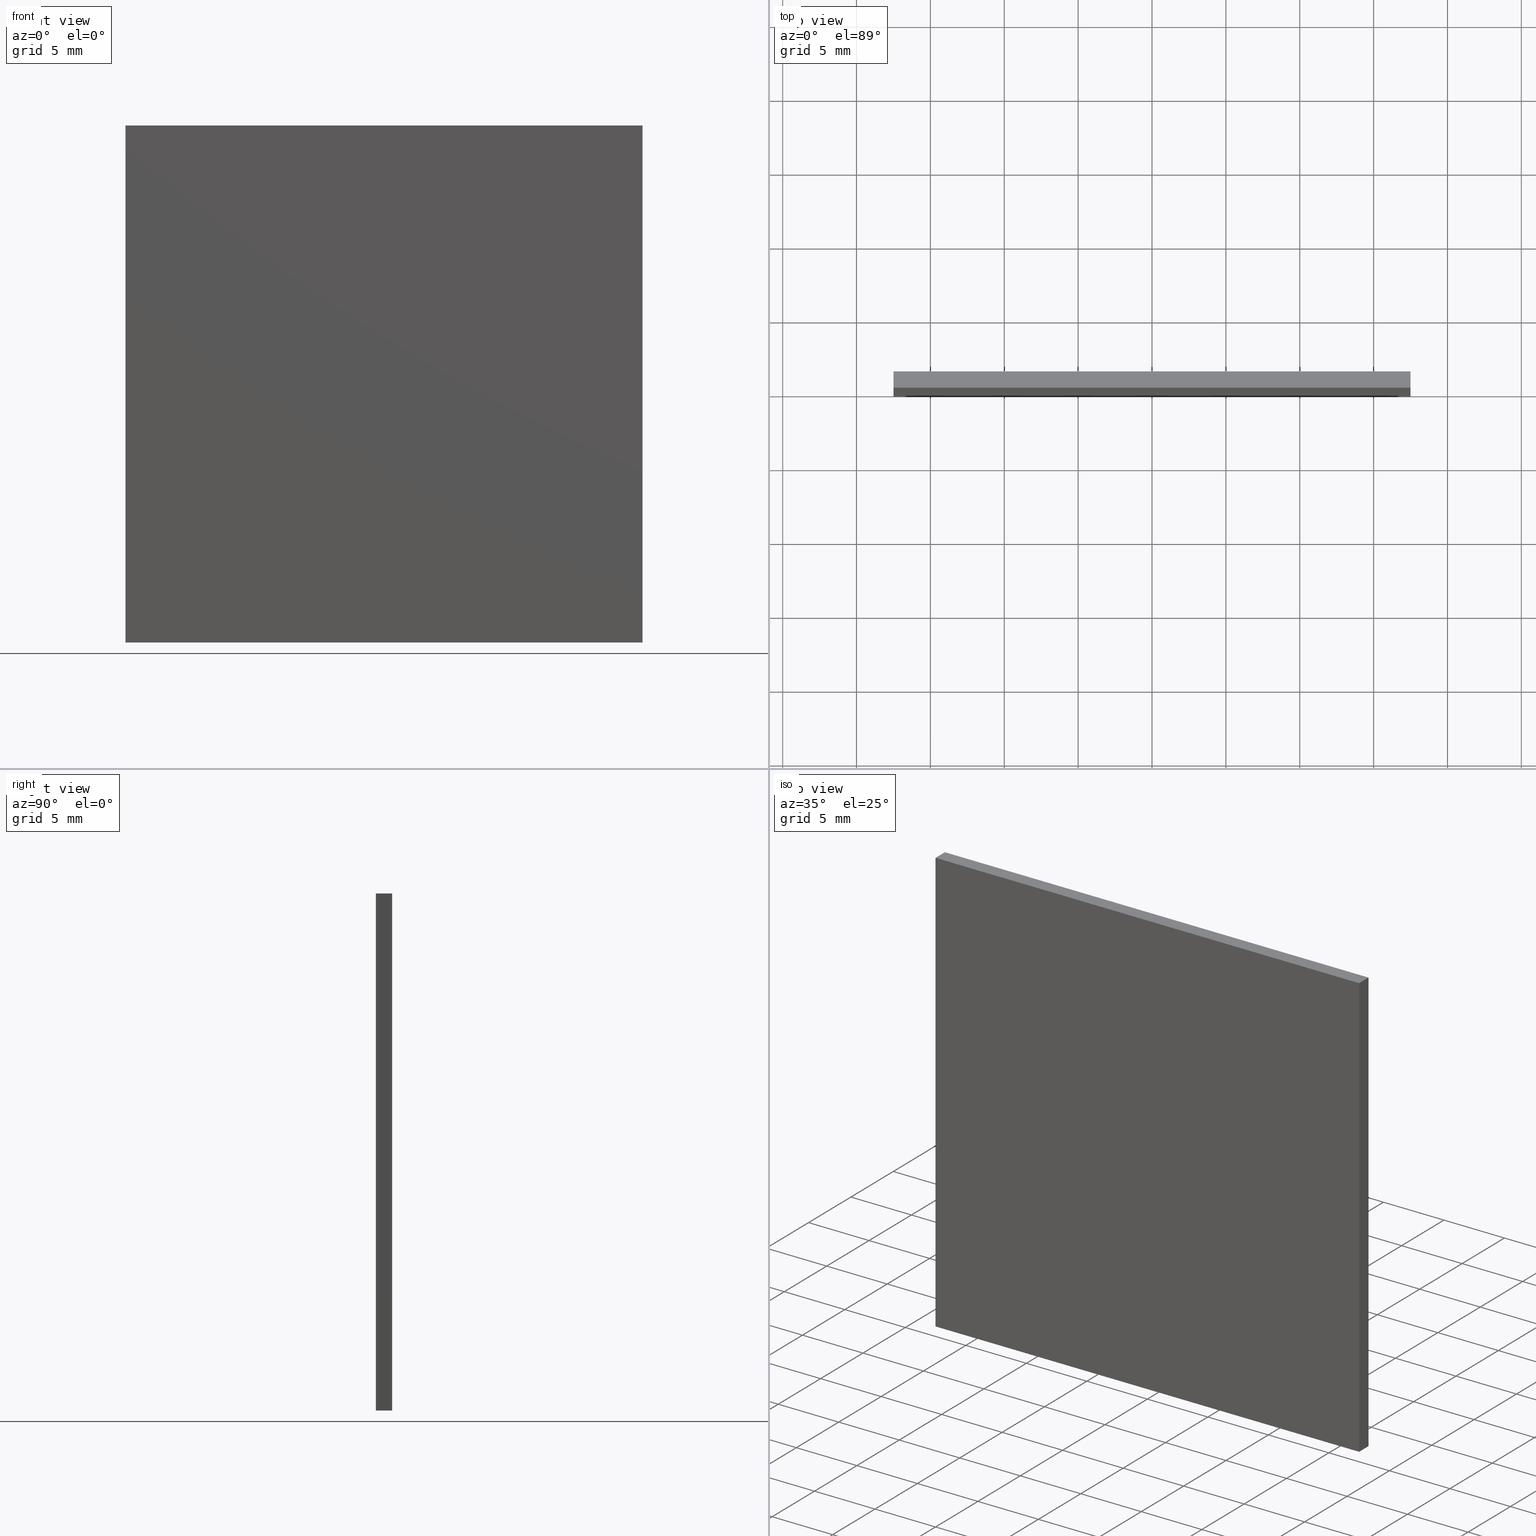
[diagram: canonical four-view strip — front | top / right | iso, engineering-drawing reading convention]
A machine part, canonical four-view strip (front | top / right | iso — engineering-drawing reading convention). The complete STEP part file that produces these views, byte-faithful:
ISO-10303-21;
HEADER;
FILE_DESCRIPTION (( 'STEP AP214' ),
    '1' );
FILE_NAME ('258504.STEP',
    '2019-08-06T09:05:42',
    ( 'user' ),
    ( '΢���й�' ),
    'SwSTEP 2.0',
    'SolidWorks 2016',
    '' );
FILE_SCHEMA (( 'AUTOMOTIVE_DESIGN' ));
ENDSEC;

DATA;
#1 = EDGE_CURVE ( 'NONE', #122, #13, #82, .T. ) ;
#2 = FACE_OUTER_BOUND ( 'NONE', #19, .T. ) ;
#3 = ORIENTED_EDGE ( 'NONE', *, *, #123, .T. ) ;
#4 = CARTESIAN_POINT ( 'NONE',  ( 17.50000000000000000, 1.100000000000000100, 17.50000000000000000 ) ) ;
#5 = UNCERTAINTY_MEASURE_WITH_UNIT (LENGTH_MEASURE( 1.000000000000000100E-005 ), #11, 'distance_accuracy_value', 'NONE');
#6 = VERTEX_POINT ( 'NONE', #17 ) ;
#7 = PLANE ( 'NONE',  #31 ) ;
#8 = EDGE_CURVE ( 'NONE', #6, #66, #118, .T. ) ;
#9 = EDGE_CURVE ( 'NONE', #6, #46, #202, .T. ) ;
#10 = VECTOR ( 'NONE', #115, 1000.000000000000000 ) ;
#11 =( LENGTH_UNIT ( ) NAMED_UNIT ( * ) SI_UNIT ( .MILLI., .METRE. ) );
#12 = VECTOR ( 'NONE', #74, 1000.000000000000000 ) ;
#13 = VERTEX_POINT ( 'NONE', #67 ) ;
#14 = SURFACE_STYLE_USAGE ( .BOTH. , #101 ) ;
#15 = LINE ( 'NONE', #89, #136 ) ;
#16 =( GEOMETRIC_REPRESENTATION_CONTEXT ( 3 ) GLOBAL_UNCERTAINTY_ASSIGNED_CONTEXT ( ( #29 ) ) GLOBAL_UNIT_ASSIGNED_CONTEXT ( ( #117, #38, #59 ) ) REPRESENTATION_CONTEXT ( 'NONE', 'WORKASPACE' ) );
#17 = CARTESIAN_POINT ( 'NONE',  ( 17.50000000000000000, 1.100000000000000100, 17.50000000000000000 ) ) ;
#18 = CARTESIAN_POINT ( 'NONE',  ( 0.0000000000000000000, 0.0000000000000000000, 0.0000000000000000000 ) ) ;
#19 = EDGE_LOOP ( 'NONE', ( #184, #124, #161, #114 ) ) ;
#20 = DIRECTION ( 'NONE',  ( -0.0000000000000000000, -1.000000000000000000, -0.0000000000000000000 ) ) ;
#21 =( NAMED_UNIT ( * ) SI_UNIT ( $, .STERADIAN. ) SOLID_ANGLE_UNIT ( ) );
#22 =( GEOMETRIC_REPRESENTATION_CONTEXT ( 3 ) GLOBAL_UNCERTAINTY_ASSIGNED_CONTEXT ( ( #5 ) ) GLOBAL_UNIT_ASSIGNED_CONTEXT ( ( #11, #195, #108 ) ) REPRESENTATION_CONTEXT ( 'NONE', 'WORKASPACE' ) );
#23 = CARTESIAN_POINT ( 'NONE',  ( -17.50000000000000000, 0.0000000000000000000, -17.50000000000000000 ) ) ;
#24 = CARTESIAN_POINT ( 'NONE',  ( 17.50000000000000000, 0.0000000000000000000, -17.50000000000000000 ) ) ;
#25 = PRODUCT_RELATED_PRODUCT_CATEGORY ( 'part', '', ( #106 ) ) ;
#26 = SURFACE_STYLE_USAGE ( .BOTH. , #190 ) ;
#27 = ORIENTED_EDGE ( 'NONE', *, *, #201, .F. ) ;
#28 = ORIENTED_EDGE ( 'NONE', *, *, #63, .F. ) ;
#29 = UNCERTAINTY_MEASURE_WITH_UNIT (LENGTH_MEASURE( 1.000000000000000100E-005 ), #117, 'distance_accuracy_value', 'NONE');
#30 = VECTOR ( 'NONE', #71, 1000.000000000000000 ) ;
#31 = AXIS2_PLACEMENT_3D ( 'NONE', #42, #103, #61 ) ;
#32 = CARTESIAN_POINT ( 'NONE',  ( -17.50000000000000000, 1.100000000000000100, -17.50000000000000000 ) ) ;
#33 = FACE_OUTER_BOUND ( 'NONE', #80, .T. ) ;
#34 = ADVANCED_FACE ( 'NONE', ( #105 ), #36, .F. ) ;
#35 = COLOUR_RGB ( '',1.000000000000000000, 1.000000000000000000, 1.000000000000000000 ) ;
#36 = PLANE ( 'NONE',  #132 ) ;
#37 = FILL_AREA_STYLE_COLOUR ( '', #139 ) ;
#38 =( NAMED_UNIT ( * ) PLANE_ANGLE_UNIT ( ) SI_UNIT ( $, .RADIAN. ) );
#39 =( GEOMETRIC_REPRESENTATION_CONTEXT ( 3 ) GLOBAL_UNCERTAINTY_ASSIGNED_CONTEXT ( ( #73 ) ) GLOBAL_UNIT_ASSIGNED_CONTEXT ( ( #40, #56, #21 ) ) REPRESENTATION_CONTEXT ( 'NONE', 'WORKASPACE' ) );
#40 =( LENGTH_UNIT ( ) NAMED_UNIT ( * ) SI_UNIT ( .MILLI., .METRE. ) );
#41 = VECTOR ( 'NONE', #20, 1000.000000000000000 ) ;
#42 = CARTESIAN_POINT ( 'NONE',  ( -17.50000000000000000, 1.100000000000000100, 17.50000000000000000 ) ) ;
#43 = SURFACE_STYLE_FILL_AREA ( #171 ) ;
#44 = ORIENTED_EDGE ( 'NONE', *, *, #201, .T. ) ;
#45 = PRESENTATION_LAYER_ASSIGNMENT (  '', '', ( #164 ) ) ;
#46 = VERTEX_POINT ( 'NONE', #175 ) ;
#47 = FACE_OUTER_BOUND ( 'NONE', #104, .T. ) ;
#48 = ORIENTED_EDGE ( 'NONE', *, *, #1, .T. ) ;
#49 = SHAPE_DEFINITION_REPRESENTATION ( #65, #162 ) ;
#50 = DIRECTION ( 'NONE',  ( -0.0000000000000000000, -1.000000000000000000, -0.0000000000000000000 ) ) ;
#51 = CARTESIAN_POINT ( 'NONE',  ( 17.50000000000000000, 1.100000000000000100, -17.50000000000000000 ) ) ;
#52 = ORIENTED_EDGE ( 'NONE', *, *, #85, .T. ) ;
#53 = PLANE ( 'NONE',  #166 ) ;
#54 = DIRECTION ( 'NONE',  ( 0.0000000000000000000, 1.000000000000000000, 0.0000000000000000000 ) ) ;
#55 = FILL_AREA_STYLE ('',( #37 ) ) ;
#56 =( NAMED_UNIT ( * ) PLANE_ANGLE_UNIT ( ) SI_UNIT ( $, .RADIAN. ) );
#57 = AXIS2_PLACEMENT_3D ( 'NONE', #87, #170, #199 ) ;
#58 = EDGE_LOOP ( 'NONE', ( #154, #62, #163, #107 ) ) ;
#59 =( NAMED_UNIT ( * ) SI_UNIT ( $, .STERADIAN. ) SOLID_ANGLE_UNIT ( ) );
#60 = MECHANICAL_DESIGN_GEOMETRIC_PRESENTATION_REPRESENTATION (  '', ( #164 ), #22 ) ;
#61 = DIRECTION ( 'NONE',  ( -1.000000000000000000, 0.0000000000000000000, -0.0000000000000000000 ) ) ;
#62 = ORIENTED_EDGE ( 'NONE', *, *, #109, .T. ) ;
#63 = EDGE_CURVE ( 'NONE', #119, #180, #69, .T. ) ;
#64 = VECTOR ( 'NONE', #189, 1000.000000000000000 ) ;
#65 = PRODUCT_DEFINITION_SHAPE ( 'NONE', 'NONE',  #120 ) ;
#66 = VERTEX_POINT ( 'NONE', #144 ) ;
#67 = CARTESIAN_POINT ( 'NONE',  ( -17.50000000000000000, 0.0000000000000000000, -17.50000000000000000 ) ) ;
#68 = EDGE_LOOP ( 'NONE', ( #145, #169, #146, #183 ) ) ;
#69 = LINE ( 'NONE', #151, #41 ) ;
#70 = CARTESIAN_POINT ( 'NONE',  ( -17.50000000000000000, 1.100000000000000100, -17.50000000000000000 ) ) ;
#71 = DIRECTION ( 'NONE',  ( -0.0000000000000000000, -0.0000000000000000000, -1.000000000000000000 ) ) ;
#72 = ADVANCED_FACE ( 'NONE', ( #121 ), #140, .F. ) ;
#73 = UNCERTAINTY_MEASURE_WITH_UNIT (LENGTH_MEASURE( 1.000000000000000100E-005 ), #40, 'distance_accuracy_value', 'NONE');
#74 = DIRECTION ( 'NONE',  ( -0.0000000000000000000, -1.000000000000000000, -0.0000000000000000000 ) ) ;
#75 = VECTOR ( 'NONE', #160, 1000.000000000000000 ) ;
#76 = DIRECTION ( 'NONE',  ( 0.0000000000000000000, 0.0000000000000000000, 1.000000000000000000 ) ) ;
#77 = VECTOR ( 'NONE', #196, 1000.000000000000000 ) ;
#78 = VERTEX_POINT ( 'NONE', #24 ) ;
#79 = PRODUCT_DEFINITION_FORMATION_WITH_SPECIFIED_SOURCE ( '�κ�', '', #106, .NOT_KNOWN. ) ;
#80 = EDGE_LOOP ( 'NONE', ( #149, #96, #27, #134 ) ) ;
#81 = CARTESIAN_POINT ( 'NONE',  ( -17.50000000000000000, 0.0000000000000000000, 17.50000000000000000 ) ) ;
#82 = LINE ( 'NONE', #95, #10 ) ;
#83 = DIRECTION ( 'NONE',  ( 0.0000000000000000000, 0.0000000000000000000, 1.000000000000000000 ) ) ;
#84 = PRODUCT_DEFINITION_CONTEXT ( 'detailed design', #177, 'design' ) ;
#85 = EDGE_CURVE ( 'NONE', #66, #78, #110, .T. ) ;
#86 = ADVANCED_FACE ( 'NONE', ( #33 ), #113, .F. ) ;
#87 = CARTESIAN_POINT ( 'NONE',  ( 0.0000000000000000000, 1.100000000000000100, 0.0000000000000000000 ) ) ;
#88 = EDGE_LOOP ( 'NONE', ( #3, #173, #92, #52 ) ) ;
#89 = CARTESIAN_POINT ( 'NONE',  ( -17.50000000000000000, 0.0000000000000000000, -17.50000000000000000 ) ) ;
#90 = MANIFOLD_SOLID_BREP ( '͹̨-����1', #125 ) ;
#91 = PRESENTATION_STYLE_ASSIGNMENT (( #14 ) ) ;
#92 = ORIENTED_EDGE ( 'NONE', *, *, #109, .F. ) ;
#93 = VECTOR ( 'NONE', #178, 1000.000000000000000 ) ;
#94 = DIRECTION ( 'NONE',  ( 1.000000000000000000, 0.0000000000000000000, -0.0000000000000000000 ) ) ;
#95 = CARTESIAN_POINT ( 'NONE',  ( -17.50000000000000000, 1.100000000000000100, -17.50000000000000000 ) ) ;
#96 = ORIENTED_EDGE ( 'NONE', *, *, #148, .F. ) ;
#97 = DIRECTION ( 'NONE',  ( 1.000000000000000000, 0.0000000000000000000, 0.0000000000000000000 ) ) ;
#98 = DIRECTION ( 'NONE',  ( 1.000000000000000000, 0.0000000000000000000, 0.0000000000000000000 ) ) ;
#99 = ADVANCED_FACE ( 'NONE', ( #2 ), #7, .F. ) ;
#100 = CARTESIAN_POINT ( 'NONE',  ( 0.0000000000000000000, 0.0000000000000000000, 0.0000000000000000000 ) ) ;
#101 = SURFACE_SIDE_STYLE ('',( #186 ) ) ;
#102 = VECTOR ( 'NONE', #76, 1000.000000000000000 ) ;
#103 = DIRECTION ( 'NONE',  ( 0.0000000000000000000, 0.0000000000000000000, -1.000000000000000000 ) ) ;
#104 = EDGE_LOOP ( 'NONE', ( #44, #28, #191, #48 ) ) ;
#105 = FACE_OUTER_BOUND ( 'NONE', #88, .T. ) ;
#106 = PRODUCT ( '258504', '258504', '', ( #200 ) ) ;
#107 = ORIENTED_EDGE ( 'NONE', *, *, #135, .T. ) ;
#108 =( NAMED_UNIT ( * ) SI_UNIT ( $, .STERADIAN. ) SOLID_ANGLE_UNIT ( ) );
#109 = EDGE_CURVE ( 'NONE', #66, #122, #138, .T. ) ;
#110 = LINE ( 'NONE', #142, #12 ) ;
#111 = APPLICATION_PROTOCOL_DEFINITION ( 'draft international standard', 'automotive_design', 1998, #112 ) ;
#112 = APPLICATION_CONTEXT ( 'automotive_design' ) ;
#113 = PLANE ( 'NONE',  #155 ) ;
#114 = ORIENTED_EDGE ( 'NONE', *, *, #63, .T. ) ;
#115 = DIRECTION ( 'NONE',  ( -0.0000000000000000000, -1.000000000000000000, -0.0000000000000000000 ) ) ;
#116 = CARTESIAN_POINT ( 'NONE',  ( -17.50000000000000000, 0.0000000000000000000, 17.50000000000000000 ) ) ;
#117 =( LENGTH_UNIT ( ) NAMED_UNIT ( * ) SI_UNIT ( .MILLI., .METRE. ) );
#118 = LINE ( 'NONE', #51, #30 ) ;
#119 = VERTEX_POINT ( 'NONE', #128 ) ;
#120 = PRODUCT_DEFINITION ( 'δ֪', '', #79, #84 ) ;
#121 = FACE_OUTER_BOUND ( 'NONE', #68, .T. ) ;
#122 = VERTEX_POINT ( 'NONE', #127 ) ;
#123 = EDGE_CURVE ( 'NONE', #78, #13, #15, .T. ) ;
#124 = ORIENTED_EDGE ( 'NONE', *, *, #9, .F. ) ;
#125 = CLOSED_SHELL ( 'NONE', ( #72, #34, #158, #99, #174, #86 ) ) ;
#126 = DIRECTION ( 'NONE',  ( 0.0000000000000000000, 0.0000000000000000000, 1.000000000000000000 ) ) ;
#127 = CARTESIAN_POINT ( 'NONE',  ( -17.50000000000000000, 1.100000000000000100, -17.50000000000000000 ) ) ;
#128 = CARTESIAN_POINT ( 'NONE',  ( -17.50000000000000000, 1.100000000000000100, 17.50000000000000000 ) ) ;
#129 = VECTOR ( 'NONE', #50, 1000.000000000000000 ) ;
#130 = DIRECTION ( 'NONE',  ( -1.000000000000000000, -0.0000000000000000000, -0.0000000000000000000 ) ) ;
#131 = CARTESIAN_POINT ( 'NONE',  ( -17.50000000000000000, 1.100000000000000100, 17.50000000000000000 ) ) ;
#132 = AXIS2_PLACEMENT_3D ( 'NONE', #193, #83, #94 ) ;
#133 = LINE ( 'NONE', #23, #77 ) ;
#134 = ORIENTED_EDGE ( 'NONE', *, *, #123, .F. ) ;
#135 = EDGE_CURVE ( 'NONE', #119, #6, #168, .T. ) ;
#136 = VECTOR ( 'NONE', #130, 1000.000000000000000 ) ;
#137 = DIRECTION ( 'NONE',  ( -0.0000000000000000000, -0.0000000000000000000, -1.000000000000000000 ) ) ;
#138 = LINE ( 'NONE', #159, #75 ) ;
#139 = COLOUR_RGB ( '',1.000000000000000000, 1.000000000000000000, 1.000000000000000000 ) ;
#140 = PLANE ( 'NONE',  #147 ) ;
#141 = FILL_AREA_STYLE_COLOUR ( '', #35 ) ;
#142 = CARTESIAN_POINT ( 'NONE',  ( 17.50000000000000000, 1.100000000000000100, -17.50000000000000000 ) ) ;
#143 = PLANE ( 'NONE',  #57 ) ;
#144 = CARTESIAN_POINT ( 'NONE',  ( 17.50000000000000000, 1.100000000000000100, -17.50000000000000000 ) ) ;
#145 = ORIENTED_EDGE ( 'NONE', *, *, #185, .T. ) ;
#146 = ORIENTED_EDGE ( 'NONE', *, *, #8, .F. ) ;
#147 = AXIS2_PLACEMENT_3D ( 'NONE', #172, #152, #126 ) ;
#148 = EDGE_CURVE ( 'NONE', #180, #46, #176, .T. ) ;
#149 = ORIENTED_EDGE ( 'NONE', *, *, #185, .F. ) ;
#150 = CARTESIAN_POINT ( 'NONE',  ( 17.50000000000000000, 0.0000000000000000000, -17.50000000000000000 ) ) ;
#151 = CARTESIAN_POINT ( 'NONE',  ( -17.50000000000000000, 1.100000000000000100, 17.50000000000000000 ) ) ;
#152 = DIRECTION ( 'NONE',  ( -1.000000000000000000, 0.0000000000000000000, 0.0000000000000000000 ) ) ;
#153 = PRESENTATION_STYLE_ASSIGNMENT (( #26 ) ) ;
#154 = ORIENTED_EDGE ( 'NONE', *, *, #8, .T. ) ;
#155 = AXIS2_PLACEMENT_3D ( 'NONE', #18, #54, #156 ) ;
#156 = DIRECTION ( 'NONE',  ( 0.0000000000000000000, -0.0000000000000000000, 1.000000000000000000 ) ) ;
#157 = DIRECTION ( 'NONE',  ( 0.0000000000000000000, 0.0000000000000000000, 1.000000000000000000 ) ) ;
#158 = ADVANCED_FACE ( 'NONE', ( #47 ), #53, .F. ) ;
#159 = CARTESIAN_POINT ( 'NONE',  ( -17.50000000000000000, 1.100000000000000100, -17.50000000000000000 ) ) ;
#160 = DIRECTION ( 'NONE',  ( -1.000000000000000000, -0.0000000000000000000, -0.0000000000000000000 ) ) ;
#161 = ORIENTED_EDGE ( 'NONE', *, *, #135, .F. ) ;
#162 = ADVANCED_BREP_SHAPE_REPRESENTATION ( '258504', ( #90, #165 ), #39 ) ;
#163 = ORIENTED_EDGE ( 'NONE', *, *, #197, .T. ) ;
#164 = STYLED_ITEM ( 'NONE', ( #91 ), #162 ) ;
#165 = AXIS2_PLACEMENT_3D ( 'NONE', #100, #157, #98 ) ;
#166 = AXIS2_PLACEMENT_3D ( 'NONE', #70, #97, #192 ) ;
#167 = STYLED_ITEM ( 'NONE', ( #153 ), #90 ) ;
#168 = LINE ( 'NONE', #131, #64 ) ;
#169 = ORIENTED_EDGE ( 'NONE', *, *, #85, .F. ) ;
#170 = DIRECTION ( 'NONE',  ( 0.0000000000000000000, 1.000000000000000000, 0.0000000000000000000 ) ) ;
#171 = FILL_AREA_STYLE ('',( #141 ) ) ;
#172 = CARTESIAN_POINT ( 'NONE',  ( 17.50000000000000000, 1.100000000000000100, -17.50000000000000000 ) ) ;
#173 = ORIENTED_EDGE ( 'NONE', *, *, #1, .F. ) ;
#174 = ADVANCED_FACE ( 'NONE', ( #188 ), #143, .T. ) ;
#175 = CARTESIAN_POINT ( 'NONE',  ( 17.50000000000000000, 0.0000000000000000000, 17.50000000000000000 ) ) ;
#176 = LINE ( 'NONE', #81, #93 ) ;
#177 = APPLICATION_CONTEXT ( 'automotive_design' ) ;
#178 = DIRECTION ( 'NONE',  ( 1.000000000000000000, 0.0000000000000000000, 0.0000000000000000000 ) ) ;
#179 = VECTOR ( 'NONE', #137, 1000.000000000000000 ) ;
#180 = VERTEX_POINT ( 'NONE', #116 ) ;
#181 = PRESENTATION_LAYER_ASSIGNMENT (  '', '', ( #167 ) ) ;
#182 = LINE ( 'NONE', #32, #102 ) ;
#183 = ORIENTED_EDGE ( 'NONE', *, *, #9, .T. ) ;
#184 = ORIENTED_EDGE ( 'NONE', *, *, #148, .T. ) ;
#185 = EDGE_CURVE ( 'NONE', #46, #78, #198, .T. ) ;
#186 = SURFACE_STYLE_FILL_AREA ( #55 ) ;
#187 = APPLICATION_PROTOCOL_DEFINITION ( 'draft international standard', 'automotive_design', 1998, #177 ) ;
#188 = FACE_OUTER_BOUND ( 'NONE', #58, .T. ) ;
#189 = DIRECTION ( 'NONE',  ( 1.000000000000000000, 0.0000000000000000000, 0.0000000000000000000 ) ) ;
#190 = SURFACE_SIDE_STYLE ('',( #43 ) ) ;
#191 = ORIENTED_EDGE ( 'NONE', *, *, #197, .F. ) ;
#192 = DIRECTION ( 'NONE',  ( 0.0000000000000000000, 0.0000000000000000000, -1.000000000000000000 ) ) ;
#193 = CARTESIAN_POINT ( 'NONE',  ( -17.50000000000000000, 1.100000000000000100, -17.50000000000000000 ) ) ;
#194 = MECHANICAL_DESIGN_GEOMETRIC_PRESENTATION_REPRESENTATION (  '', ( #167 ), #16 ) ;
#195 =( NAMED_UNIT ( * ) PLANE_ANGLE_UNIT ( ) SI_UNIT ( $, .RADIAN. ) );
#196 = DIRECTION ( 'NONE',  ( 0.0000000000000000000, 0.0000000000000000000, 1.000000000000000000 ) ) ;
#197 = EDGE_CURVE ( 'NONE', #122, #119, #182, .T. ) ;
#198 = LINE ( 'NONE', #150, #179 ) ;
#199 = DIRECTION ( 'NONE',  ( 0.0000000000000000000, -0.0000000000000000000, 1.000000000000000000 ) ) ;
#200 = PRODUCT_CONTEXT ( 'NONE', #112, 'mechanical' ) ;
#201 = EDGE_CURVE ( 'NONE', #13, #180, #133, .T. ) ;
#202 = LINE ( 'NONE', #4, #129 ) ;
ENDSEC;
END-ISO-10303-21;
